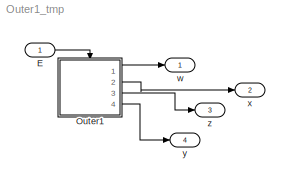
MODEL Outer1_tmp
KIND model
BLOCK [Inport] E
  IconDisplay = Port number
  SID = 6
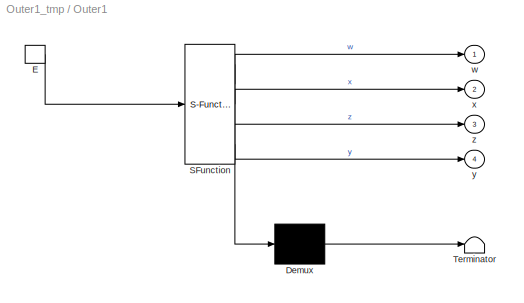
BLOCK [SubSystem] Outer1
  ErrorFcn = Stateflow.Translate.translate
  PermitHierarchicalResolution = ParametersOnly
  Ports = [0, 4, 0, 1]
  RequestExecContextInheritance = off
  SFBlockType = Chart
  SID = 1
  TreatAsAtomicUnit = on
  Variant = off
BLOCK [Demux] Outer1/ Demux 
  Outputs = 1
  Ports = [1, 1]
  SID = 1::13
BLOCK [S-Function] Outer1/ SFunction 
  EnableBusSupport = off
  FunctionName = sf_sfun
  PortCounts = [1 5]
  Ports = [1, 5]
  SFunctionDeploymentMode = off
  SID = 1::12
  Tag = Stateflow S-Function Outer1_tmp 1
BLOCK [Terminator] Outer1/ Terminator 
  SID = 1::14
BLOCK [TriggerPort] Outer1/E
  Ports = [0, 1]
  SID = 1::1
  ShowOutputPort = on
  TriggerType = either
BLOCK [Outport] Outer1/w
  IconDisplay = Port number
  SID = 1::5
BLOCK [Outport] Outer1/x
  IconDisplay = Port number
  Port = 2
  SID = 1::6
BLOCK [Outport] Outer1/y
  IconDisplay = Port number
  Port = 4
  SID = 1::8
BLOCK [Outport] Outer1/z
  IconDisplay = Port number
  Port = 3
  SID = 1::7
BLOCK [Outport] w
  IconDisplay = Port number
  SID = 2
BLOCK [Outport] x
  IconDisplay = Port number
  Port = 2
  SID = 3
BLOCK [Outport] y
  IconDisplay = Port number
  Port = 4
  SID = 5
BLOCK [Outport] z
  IconDisplay = Port number
  Port = 3
  SID = 4
LINE E:1 -> Outer1:trigger
LINE Outer1/ Demux :1 -> Outer1/ Terminator :1
LINE Outer1/ SFunction :1 -> Outer1/ Demux :1
LINE Outer1/ SFunction :2 -> Outer1/w:1
LINE Outer1/ SFunction :3 -> Outer1/x:1
LINE Outer1/ SFunction :4 -> Outer1/z:1
LINE Outer1/ SFunction :5 -> Outer1/y:1
LINE Outer1/E:1 -> Outer1/ SFunction :1
LINE Outer1:1 -> w:1
LINE Outer1:2 -> x:1
LINE Outer1:3 -> z:1
LINE Outer1:4 -> y:1
CHART Outer1 states=1 transitions=2
  STATE_LABEL 'A/\\nen: z++;\\nex: w++;'
